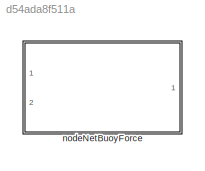
MODEL slx_d54ada8f511a
KIND library
CONFIG AbsTol = auto
CONFIG EnableMultiTasking = off
CONFIG FixedStep = auto
CONFIG MaxStep = auto
CONFIG MinStep = auto
CONFIG RelTol = 1e-3
CONFIG SampleTimeConstraint = Unconstrained
CONFIG SolverName = VariableStepAuto
CONFIG StartTime = 0.0
CONFIG StopTime = 10.0
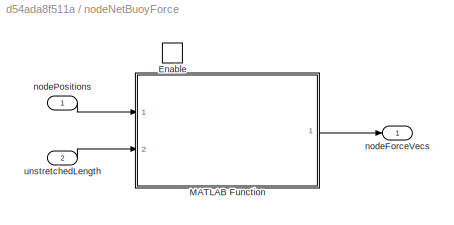
BLOCK [SubSystem] nodeNetBuoyForce
  MinAlgLoopOccurrences = on
  Ports = [2, 1, 1]
  RequestExecContextInheritance = off
BLOCK [EnablePort] nodeNetBuoyForce/Enable
  Ports = []
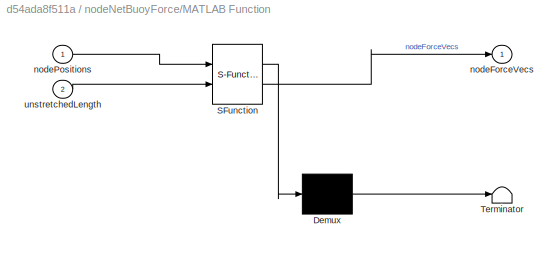
BLOCK [SubSystem] nodeNetBuoyForce/MATLAB Function
  ErrorFcn = Stateflow.Translate.translate
  PermitHierarchicalResolution = ExplicitOnly
  Ports = [2, 1]
  RequestExecContextInheritance = off
  SFBlockType = MATLAB Function
  TreatAsAtomicUnit = on
BLOCK [Demux] nodeNetBuoyForce/MATLAB Function/ Demux 
  Outputs = 1
  Ports = [1, 1]
BLOCK [S-Function] nodeNetBuoyForce/MATLAB Function/ SFunction 
  EnableBusSupport = off
  FunctionName = sf_sfun
  Parameters = diameter,fluidDensity,gravity,tetherDensity
  PortCounts = [2 2]
  Ports = [2, 2]
  SFcnIsStateOwnerBlock = off
  SFunctionDeploymentMode = off
  Tag = Stateflow S-Function 2
BLOCK [Terminator] nodeNetBuoyForce/MATLAB Function/ Terminator 
BLOCK [Outport] nodeNetBuoyForce/MATLAB Function/nodeForceVecs
  VectorParamsAs1DForOutWhenUnconnected = off
BLOCK [Inport] nodeNetBuoyForce/MATLAB Function/nodePositions
BLOCK [Inport] nodeNetBuoyForce/MATLAB Function/unstretchedLength
  Port = 2
BLOCK [Outport] nodeNetBuoyForce/nodeForceVecs
  VectorParamsAs1DForOutWhenUnconnected = off
BLOCK [Inport] nodeNetBuoyForce/nodePositions
BLOCK [Inport] nodeNetBuoyForce/unstretchedLength
  Port = 2
LINE nodeNetBuoyForce/MATLAB Function:1 -> nodeNetBuoyForce/nodeForceVecs:1
LINE nodeNetBuoyForce/nodePositions:1 -> nodeNetBuoyForce/MATLAB Function:1
LINE nodeNetBuoyForce/unstretchedLength:1 -> nodeNetBuoyForce/MATLAB Function:2
CHART nodeNetBuoyForce/MATLAB Function states=1 transitions=1
  STATE_LABEL 'eML_blk_kernel()'
  STATE_LABEL "SCRIPT:\nfunction nodeForceVecs  = fcn(...\n    nodePositions,unstretchedLength,...\n    tetherDensity, fluidDensity, diameter, gravity)\n\n% In this notation, N is the number of nodes\n\n% Length of each link 1xN-1\nlinkLengths = sqrt(sum(diff(nodePositions,1,2).^2));\n\n% Total length of all links, assuming they're straight lines, scalar\nnumericalTotalLength = sum(linkLengths);\n\n% Number of links, scalar\n...<+782ch>"
CHART  states=0 transitions=0
